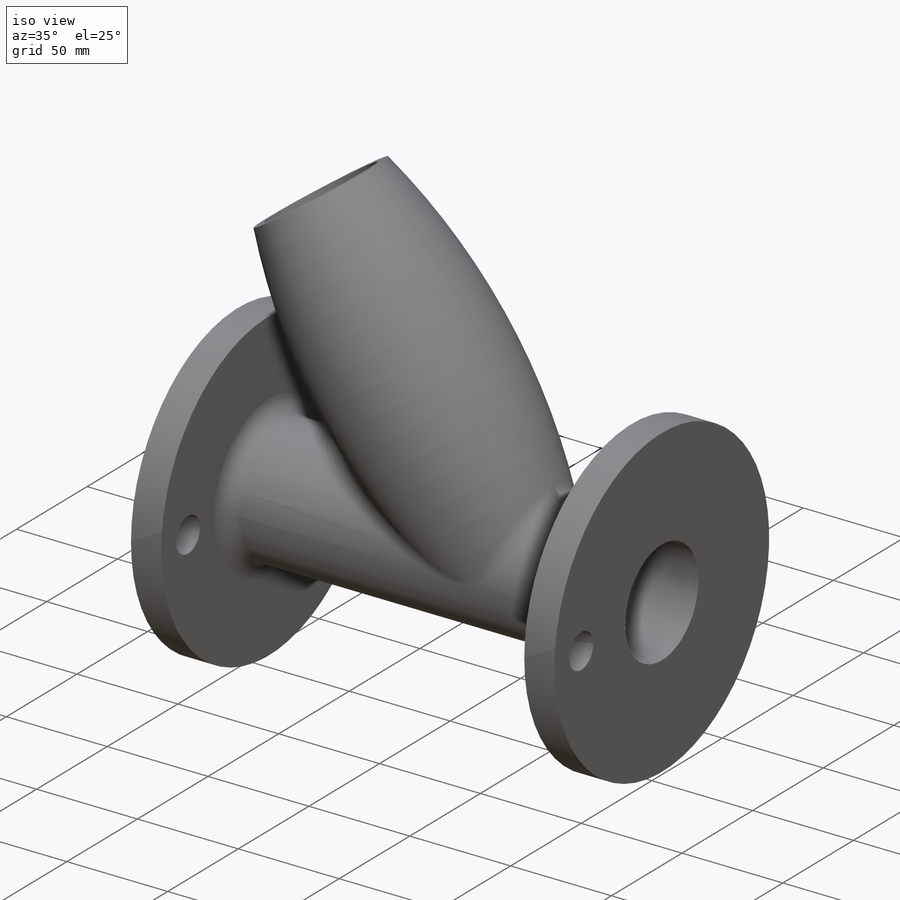
[diagram: iso view]
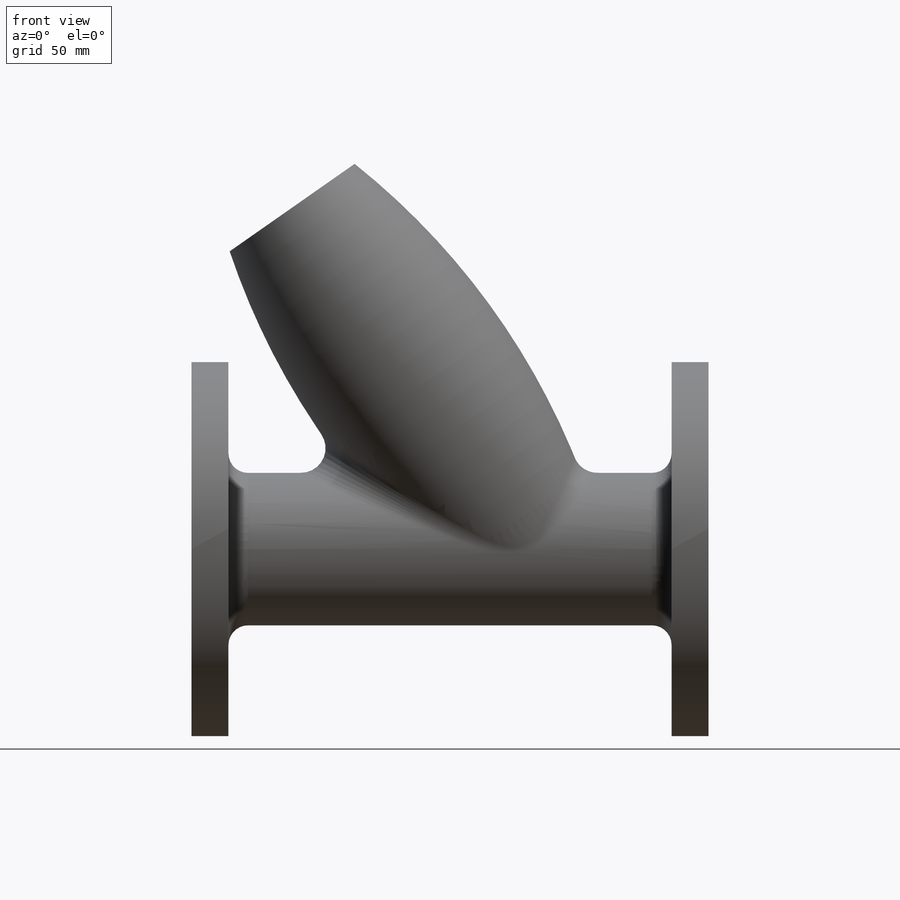
[diagram: front view]
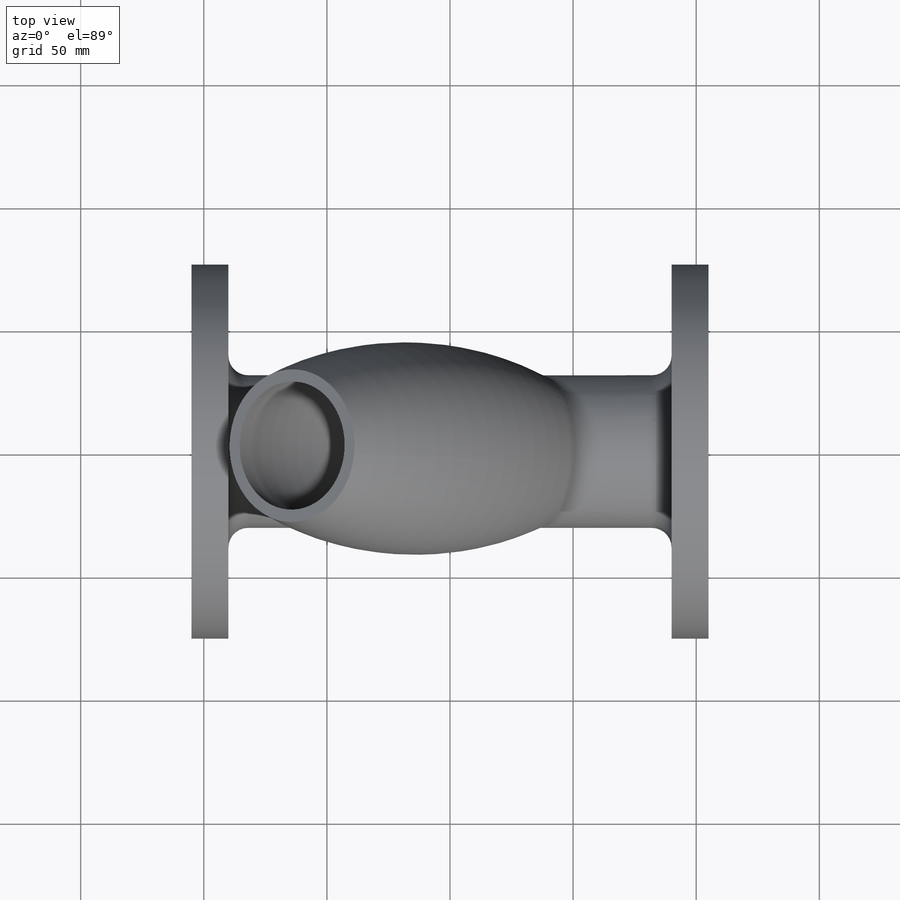
[diagram: top view]
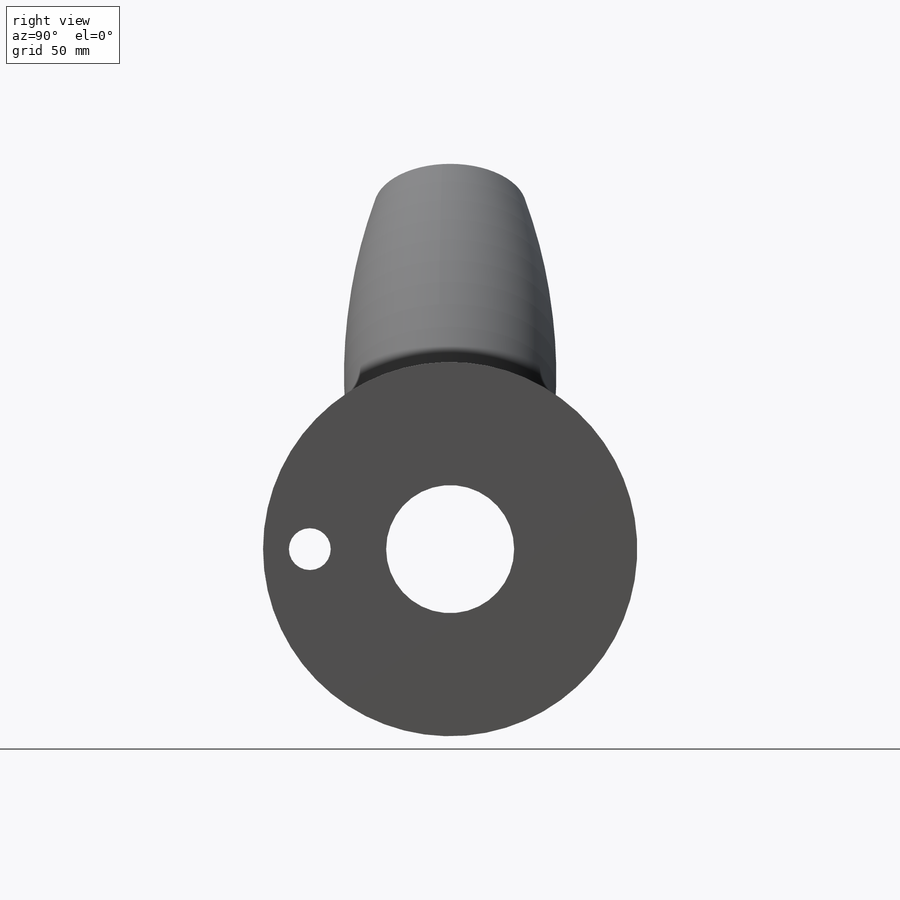
[diagram: right view]
SOLIDWORKS PART (.sldprt)
format: sldprt  version: not decoded by parser v0  size: 409,600 bytes
history: native  units: mm
features: sketch x6, cut_extrude x3, revolve x2, fillet x2, mirror x2, material x1 (+13 scaffold rows collapsed)
feature tree (29):
  scaffold x13  (default folders/planes/origin — collapsed)
  material  "Material <not specified>"
  sketch  "Sketch1"  dims[D1=152.0mm D2=210.0mm D3=15.0mm D4=62.0mm D5=180.0mm]
  revolve  "Revolve1"  Angle=360deg
  sketch  "Sketch2"  dims[c1.D4=450.0mm c1.D1=~347.703773mm c2.D1=~27.578745deg c3.D1=40.0mm c3.D2=~347.703773mm c4.D2=60.0deg c4.D1=50.0mm c5.D2=~89.582284mm c6.D2=55.0deg c6.D3=150.0mm c6.D5=62.0mm c6.D6=50.0mm c6.D7=62.0mm c7.D5=62.0mm c7.D3=156.5mm c7.D7=152.5mm c7.D1=70.0mm c7.D6=30.0mm c8.D1=60.5mm c8.D6=55.5mm c8.D8=7.5mm c8.D7=~52.642623mm c8.D4=~51.83648mm c9.D6=33.0mm c9.D8=5.0mm c9.D4=5.0mm c9.D7=5.0mm c10.D8=9.2mm c10.D9=152.0mm c10.D7=5.0mm c11.D8=20.0mm c11.D7=5.0mm]
  revolve  "Revolve3"  Angle=360deg
  fillet  "Fillet18"  Radius=10mm
  sketch  "Sketch17"  dims[D1=52.0mm]
  cut_extrude  "Cut-Extrude4"  Depth=10mm
  mirror  "Mirror1"
  fillet  "Fillet7"  Radius=8mm
  sketch  "Sketch21"  dims[D1=114.0mm D2=17.0mm]
  cut_extrude  "Cut-Extrude5"  Depth=15mm
  mirror  "Mirror3"
  sketch  "Sketch23"  dims[D1=0.0mm]
  sketch  "Sketch29"
  cut_extrude  "Cut-Extrude9"  [1 undecoded]
decode coverage: 11 of 15 modeling features carry decoded parameters
note: ~ marks probable driven/reference dimensions
note: 1 parameter value undecoded
note: suppression state not decoded; provenance and decode notes live in map.json
